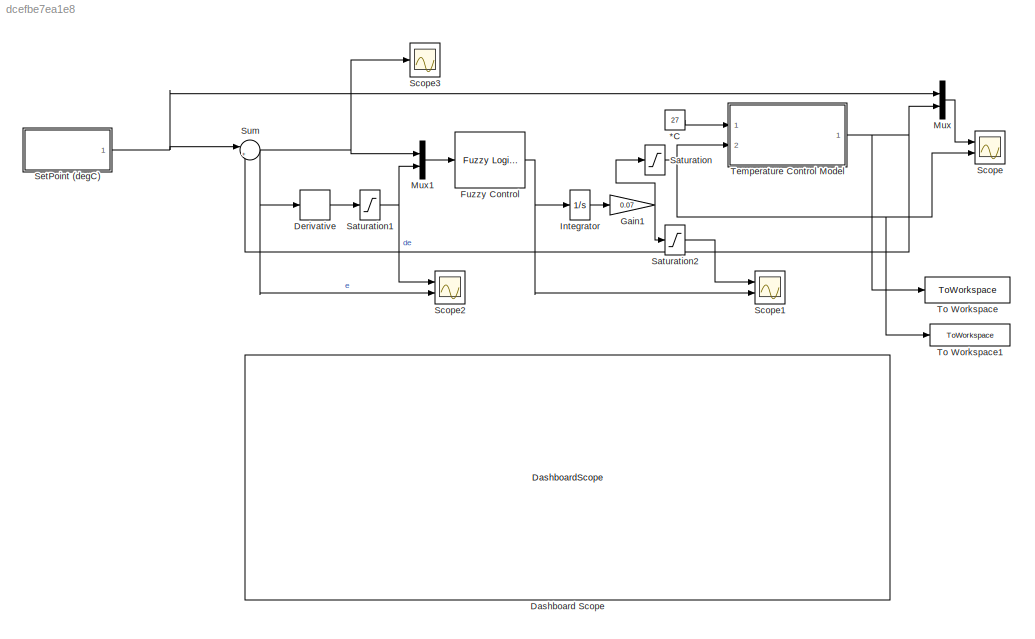
MODEL slx_dcefbe7ea1e8
KIND model
CONFIG AbsTol = auto
CONFIG EnableMultiTasking = off
CONFIG FixedStep = auto
CONFIG MaxStep = auto
CONFIG MinStep = auto
CONFIG RelTol = 1e-3
CONFIG SampleTimeConstraint = Unconstrained
CONFIG SolverName = VariableStepAuto
CONFIG StartTime = 0.0
CONFIG StopTime = 1200
BLOCK [Constant] *C
  NameLocation = top
  Value = 27
BLOCK [DashboardScope] Dashboard Scope
  Ymax = 90
  Ymin = 23
BLOCK [Derivative] Derivative
BLOCK [Reference] Fuzzy Control  REF=fuzblock/Fuzzy Logic   (lib defined in mdl_858b3b3e7478)
Controller
  Ports = [1, 1]
  SourceBlock = fuzblock/Fuzzy Logic \nController
  SourceProductBaseCode = FL
  SourceType = Fuzzy Inference System
BLOCK [Gain] Gain1
  Gain = 0.07
BLOCK [Integrator] Integrator
  Ports = [1, 1]
BLOCK [Mux] Mux
  DisplayOption = bar
  Inputs = 2
  Ports = [2, 1]
BLOCK [Mux] Mux1
  DisplayOption = bar
  Inputs = 2
  Ports = [2, 1]
BLOCK [Saturate] Saturation
  LowerLimit = 0
  UpperLimit = 100
BLOCK [Saturate] Saturation1
  LowerLimit = -2
  UpperLimit = 2
BLOCK [Saturate] Saturation2
  LowerLimit = 0
  UpperLimit = 100
BLOCK [Scope] Scope
  Floating = off
  NumInputPorts = 2
  Ports = [2]
  ScopeSpecificationString = Simulink.scopes.TimeScopeBlockCfg('CurrentConfiguration', extmgr.ConfigurationSet(extmgr.Configuration('Core','General UI',true),extmgr.Configuration('Core','Source UI',true),extmgr.Configuration('Sources','WiredSimulink',true),extmgr.Configuration('Visuals','Time Domain',true,'SerializedDisplays',{struct('MinYLimReal','-5.31933','MaxYLimReal','47.87397','YLabelReal','','MinYLimMag','0.00000','Max...<+2119ch>
BLOCK [Scope] Scope1
  Floating = off
  NumInputPorts = 2
  Ports = [2]
  ScopeSpecificationString = Simulink.scopes.TimeScopeBlockCfg('CurrentConfiguration', extmgr.ConfigurationSet(extmgr.Configuration('Core','General UI',true),extmgr.Configuration('Core','Source UI',true),extmgr.Configuration('Sources','WiredSimulink',true,'DataLoggingVariableName','ScopeData1'),extmgr.Configuration('Visuals','Time Domain',true,'SerializedDisplays',{struct('MinYLimReal','-9.086','MaxYLimReal','81.774','YLabelR...<+2096ch>
BLOCK [Scope] Scope2
  Floating = off
  NumInputPorts = 2
  Ports = [2]
  ScopeSpecificationString = Simulink.scopes.TimeScopeBlockCfg('CurrentConfiguration', extmgr.ConfigurationSet(extmgr.Configuration('Core','General UI',true),extmgr.Configuration('Core','Source UI',true),extmgr.Configuration('Sources','WiredSimulink',true,'DataLoggingVariableName','ScopeData1'),extmgr.Configuration('Visuals','Time Domain',true,'SerializedDisplays',{struct('MinYLimReal','-6.11138','MaxYLimReal','1.90591','YLab...<+1448ch>
BLOCK [Scope] Scope3
  Floating = off
  NumInputPorts = 1
  Ports = [1]
  ScopeSpecificationString = Simulink.scopes.TimeScopeBlockCfg('CurrentConfiguration', extmgr.ConfigurationSet(extmgr.Configuration('Core','General UI',true),extmgr.Configuration('Core','Source UI',true),extmgr.Configuration('Sources','WiredSimulink',true,'DataLoggingVariableName','ScopeData1'),extmgr.Configuration('Visuals','Time Domain',true,'SerializedDisplays',{struct('MinYLimReal','-39.81876','MaxYLimReal','49.06406','YL...<+1447ch>
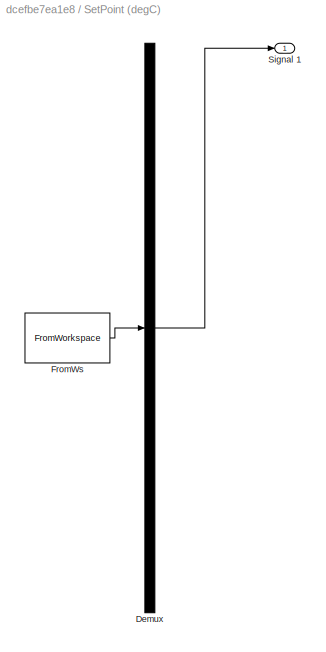
BLOCK [SubSystem] SetPoint (degC)
  ClipboardFcn = sigbuilder_block('clipboard');
  CloseFcn = sigbuilder_block('close');
  ContinueFcn = sigbuilder_block('continue');
  CopyFcn = sigbuilder_block('copy');
  DeleteFcn = sigbuilder_block('delete');
  LoadFcn = sigbuilder_block('load');
  MaskHideContents = on
  ModelCloseFcn = sigbuilder_block('modelClose');
  NameChangeFcn = sigbuilder_block('namechange');
  OpenFcn = sigbuilder_block('open',[53.4 0 1093.2 552.6 ]);
  PauseFcn = sigbuilder_block('pause');
  Ports = [0, 1]
  PreSaveFcn = sigbuilder_block('preSave');
  RequestExecContextInheritance = off
  StartFcn = sigbuilder_block('start');
  StopFcn = sigbuilder_block('stop');
  Tag = STV Subsys
BLOCK [Demux] SetPoint (degC)/Demux
  DisplayOption = none
  Outputs = 1
  Ports = [1, 1]
  Tag = STV Demux
BLOCK [FromWorkspace] SetPoint (degC)/FromWs
  Tag = STV FromWs
  VariableName = tuvar
BLOCK [Outport] SetPoint (degC)/Signal 1
  Tag = STV Outport
BLOCK [Sum] Sum
  Inputs = |+-
  Ports = [2, 1]
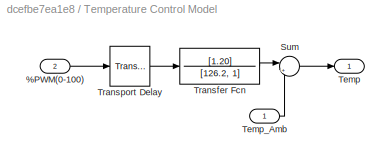
BLOCK [SubSystem] Temperature Control Model
  Ports = [2, 1]
  RequestExecContextInheritance = off
BLOCK [Inport] Temperature Control Model/%PWM(0-100)
  Port = 2
BLOCK [Sum] Temperature Control Model/Sum
  Inputs = |++
  Ports = [2, 1]
BLOCK [Outport] Temperature Control Model/Temp
BLOCK [Inport] Temperature Control Model/Temp_Amb
BLOCK [TransferFcn] Temperature Control Model/Transfer Fcn
  Denominator = [126.2, 1]
  Numerator = [1.20]
BLOCK [TransportDelay] Temperature Control Model/Transport Delay
  DelayTime = 14.23
  Ports = [1, 1]
BLOCK [ToWorkspace] To Workspace
  FixptAsFi = on
  MaxDataPoints = inf
  Ports = [1]
  SampleTime = 1
  Save2DSignal = 2-D array (concatenate along first dimension)
  VariableName = tempModelo
BLOCK [ToWorkspace] To Workspace1
  FixptAsFi = on
  MaxDataPoints = inf
  Ports = [1]
  SampleTime = 1
  Save2DSignal = 2-D array (concatenate along first dimension)
  VariableName = uModelo
LINE *C:1 -> Temperature Control Model:1
LINE Derivative:1 -> Saturation1:1
NET Fuzzy Control:1 -> Integrator:1, Scope1:2
NET Gain1:1 -> Saturation2:1, Saturation:1
LINE Integrator:1 -> Gain1:1
LINE Mux1:1 -> Fuzzy Control:1
LINE Mux:1 -> Scope:1
NET Saturation1:1 -> Mux1:2, Scope2:1
LINE Saturation2:1 -> Scope1:1
NET Saturation:1 -> Scope:2, Temperature Control Model:2, To Workspace1:1
NET SetPoint (degC):1 -> Mux:1, Sum:1
NET Sum:1 -> Derivative:1, Mux1:1, Scope2:2, Scope3:1
LINE Temperature Control Model/%PWM(0-100):1 -> Temperature Control Model/Transport Delay:1
LINE Temperature Control Model/Sum:1 -> Temperature Control Model/Temp:1
LINE Temperature Control Model/Temp_Amb:1 -> Temperature Control Model/Sum:2
LINE Temperature Control Model/Transfer Fcn:1 -> Temperature Control Model/Sum:1
LINE Temperature Control Model/Transport Delay:1 -> Temperature Control Model/Transfer Fcn:1
NET Temperature Control Model:1 -> Mux:2, Sum:2, To Workspace:1
note: NET lines group one-source signal fan-out (src -> all destinations, sorted); 1:1 wires keep LINE
